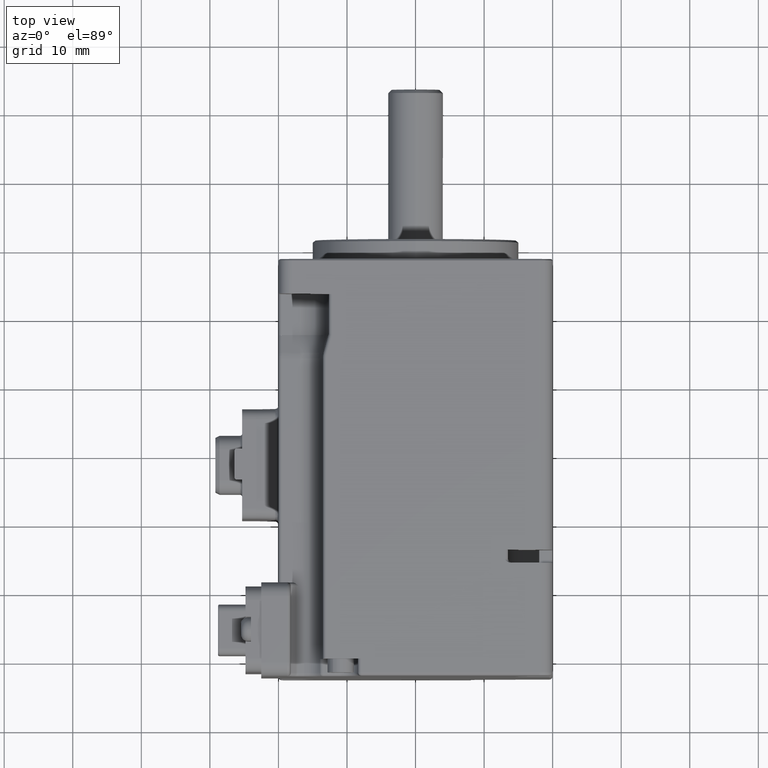
[diagram: clean part render]
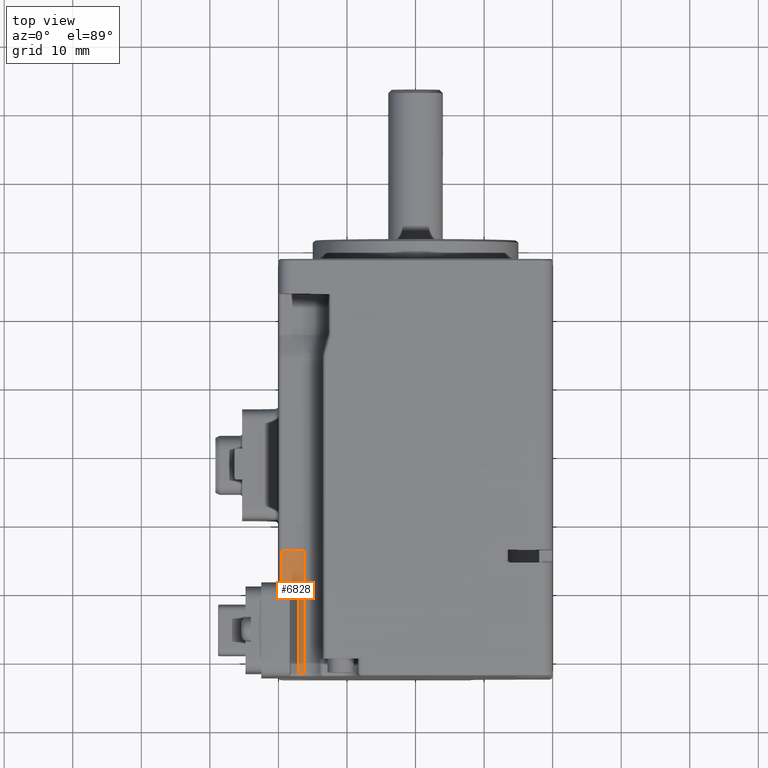
[diagram: same view with one face highlighted and labeled with its STEP entity id]
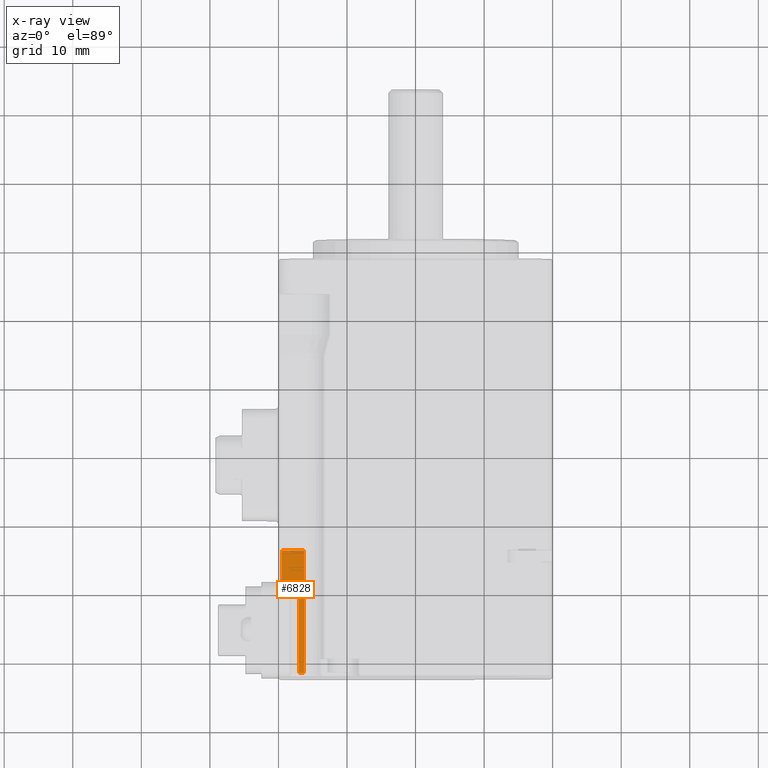
[diagram: x-ray of the same camera — body ghosted, the highlighted face saturated]
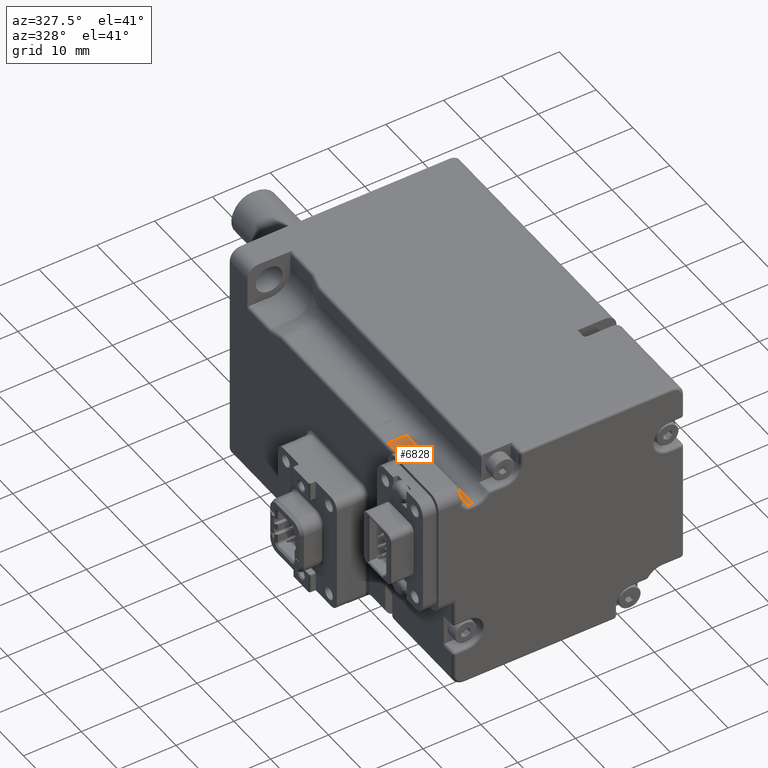
[diagram: same view with one face highlighted and labeled with its STEP entity id]
A machine part, top view. The second image highlights one B-rep face of the part: STEP entity #6828.
The next image is the same camera in x-ray: the body ghosted, the highlighted face saturated — about 0% of this face is hidden behind the body in this view.
A second angle (auxiliary view) of the same face is appended — the face is thin or edge-on in the first view.
In plain terms, the highlighted planar face has unit normal (0, 0, -1).
Its self-contained STEP definition (entity closure, byte-faithful):
#288 = ORIENTED_EDGE ( 'NONE', *, *, #7957, .T. ) ;
#632 = DIRECTION ( 'NONE',  ( 7.347641559956486562E-15, 1.165734175856419889E-15, -1.000000000000000000 ) ) ;
#2287 = DIRECTION ( 'NONE',  ( 2.428612866367538807E-16, -1.000000000000000000, -1.165734175856418706E-15 ) ) ;
#3208 = CARTESIAN_POINT ( 'NONE',  ( -16.26345596729067466, -2.500000000000057732, 13.50345596729042086 ) ) ;
#3510 = VECTOR ( 'NONE', #2287, 1000.000000000000000 ) ;
#3765 = CARTESIAN_POINT ( 'NONE',  ( -17.66444195738190359, -8.732646012682170777, 13.50345596729040487 ) ) ;
#4416 =( BOUNDED_CURVE ( )  B_SPLINE_CURVE ( 3, ( #25714, #22547, #3765, #27989 ),
 .UNSPECIFIED., .F., .F. ) 
 B_SPLINE_CURVE_WITH_KNOTS ( ( 4, 4 ),
 ( 4.712388980384689674, 5.338239051312135608 ),
 .UNSPECIFIED. ) 
 CURVE ( )  GEOMETRIC_REPRESENTATION_ITEM ( )  RATIONAL_B_SPLINE_CURVE ( ( 1.000000000000000000, 0.9676247932184491862, 0.9676247932184491862, 1.000000000000000000 ) ) 
 REPRESENTATION_ITEM ( '' )  );
#4788 = VECTOR ( 'NONE', #11851, 1000.000000000000000 ) ;
#5388 = LINE ( 'NONE', #29710, #10918 ) ;
#5556 = DIRECTION ( 'NONE',  ( -1.000000000000000000, -2.428612866367452525E-16, -7.347641559956486562E-15 ) ) ;
#5792 = CARTESIAN_POINT ( 'NONE',  ( -17.19459671956843749, -9.048298016242068087, 13.50345596729040487 ) ) ;
#6119 = FACE_OUTER_BOUND ( 'NONE', #25316, .T. ) ;
#6449 = CARTESIAN_POINT ( 'NONE',  ( -20.00000000000008527, -21.90000000000005187, 13.50345596729037112 ) ) ;
#6828 = ADVANCED_FACE ( 'NONE', ( #6119 ), #32837, .F. ) ;
#7492 = DIRECTION ( 'NONE',  ( 1.000000000000000000, 2.428612866367452525E-16, 7.347641559956486562E-15 ) ) ;
#7625 = ORIENTED_EDGE ( 'NONE', *, *, #14337, .T. ) ;
#7954 = EDGE_CURVE ( 'NONE', #13791, #21789, #11250, .T. ) ;
#7957 = EDGE_CURVE ( 'NONE', #19796, #25206, #21976, .T. ) ;
#8394 = CARTESIAN_POINT ( 'NONE',  ( -17.34931140261643279, -8.893703278380058919, 13.50345596729040665 ) ) ;
#8609 = CARTESIAN_POINT ( 'NONE',  ( -17.04289321881353203, -21.90000000000005187, 13.50345596729039244 ) ) ;
#9474 = VERTEX_POINT ( 'NONE', #8609 ) ;
#9686 = ORIENTED_EDGE ( 'NONE', *, *, #14166, .T. ) ;
#9722 = CARTESIAN_POINT ( 'NONE',  ( -16.26345596729067111, -21.90000000000004476, 13.50345596729039777 ) ) ;
#10843 = CARTESIAN_POINT ( 'NONE',  ( -16.26345596729067466, -4.000000000000055955, 13.50345596729041908 ) ) ;
#10918 = VECTOR ( 'NONE', #29874, 1000.000000000000000 ) ;
#11250 = LINE ( 'NONE', #3208, #29662 ) ;
#11316 = ORIENTED_EDGE ( 'NONE', *, *, #30649, .T. ) ;
#11851 = DIRECTION ( 'NONE',  ( 1.000000000000000000, 2.428612866367452525E-16, 7.347641559956486562E-15 ) ) ;
#11956 = VECTOR ( 'NONE', #7492, 1000.000000000000000 ) ;
#12168 = LINE ( 'NONE', #6449, #4788 ) ;
#12416 = CARTESIAN_POINT ( 'NONE',  ( -19.50000000000008527, -8.700000000000054357, 13.50345596729038888 ) ) ;
#12688 = LINE ( 'NONE', #23480, #11956 ) ;
#12978 = VECTOR ( 'NONE', #32555, 1000.000000000000000 ) ;
#13456 = EDGE_CURVE ( 'NONE', #15960, #13791, #12688, .T. ) ;
#13791 = VERTEX_POINT ( 'NONE', #10843 ) ;
#14166 = EDGE_CURVE ( 'NONE', #9474, #21789, #12168, .T. ) ;
#14192 = CARTESIAN_POINT ( 'NONE',  ( -17.54289321881353203, -8.794767273812873043, 13.50345596729040487 ) ) ;
#14337 = EDGE_CURVE ( 'NONE', #28010, #9474, #5388, .T. ) ;
#15960 = VERTEX_POINT ( 'NONE', #29692 ) ;
#16324 = CARTESIAN_POINT ( 'NONE',  ( -17.04289321881353558, -9.200000000000054357, 13.50345596729040665 ) ) ;
#16896 = CARTESIAN_POINT ( 'NONE',  ( -17.04289321881353558, -9.200000000000054357, 13.50345596729040665 ) ) ;
#18340 = VERTEX_POINT ( 'NONE', #14192 ) ;
#19796 = VERTEX_POINT ( 'NONE', #12416 ) ;
#20345 = ORIENTED_EDGE ( 'NONE', *, *, #7954, .F. ) ;
#21165 = AXIS2_PLACEMENT_3D ( 'NONE', #26779, #632, #5556 ) ;
#21197 = ORIENTED_EDGE ( 'NONE', *, *, #24680, .T. ) ;
#21789 = VERTEX_POINT ( 'NONE', #9722 ) ;
#21976 = LINE ( 'NONE', #29310, #12978 ) ;
#22074 = CARTESIAN_POINT ( 'NONE',  ( -17.54289321881353203, -8.794767273812873043, 13.50345596729040487 ) ) ;
#22144 = ORIENTED_EDGE ( 'NONE', *, *, #31975, .T. ) ;
#22547 = CARTESIAN_POINT ( 'NONE',  ( -17.80713279005315641, -8.700000000000052580, 13.50345596729040309 ) ) ;
#23176 = LINE ( 'NONE', #25968, #3510 ) ;
#23480 = CARTESIAN_POINT ( 'NONE',  ( -20.00000000000008882, -4.000000000000055955, 13.50345596729039066 ) ) ;
#24217 = ORIENTED_EDGE ( 'NONE', *, *, #13456, .F. ) ;
#24475 = B_SPLINE_CURVE_WITH_KNOTS ( 'NONE', 3,
 ( #22074, #8394, #5792, #16324 ),
 .UNSPECIFIED., .F., .F.,
 ( 4, 4 ),
 ( 8.050201130704870423E-18, 0.0006436202266528085218 ),
 .UNSPECIFIED. ) ;
#24680 = EDGE_CURVE ( 'NONE', #18340, #28010, #24475, .T. ) ;
#25206 = VERTEX_POINT ( 'NONE', #29318 ) ;
#25316 = EDGE_LOOP ( 'NONE', ( #24217, #22144, #288, #11316, #21197, #7625, #9686, #20345 ) ) ;
#25714 = CARTESIAN_POINT ( 'NONE',  ( -17.95710678118663139, -8.700000000000054357, 13.50345596729039954 ) ) ;
#25968 = CARTESIAN_POINT ( 'NONE',  ( -19.50000000000008527, -8.700000000000054357, 13.50345596729038888 ) ) ;
#26745 = DIRECTION ( 'NONE',  ( 2.428612866367538314E-16, -1.000000000000000000, -1.165734175856418312E-15 ) ) ;
#26779 = CARTESIAN_POINT ( 'NONE',  ( -20.00000000000008882, -2.500000000000057732, 13.50345596729039244 ) ) ;
#27989 = CARTESIAN_POINT ( 'NONE',  ( -17.54289321881353203, -8.794767273812873043, 13.50345596729040487 ) ) ;
#28010 = VERTEX_POINT ( 'NONE', #16896 ) ;
#29310 = CARTESIAN_POINT ( 'NONE',  ( -17.25000000000008171, -8.700000000000052580, 13.50345596729040487 ) ) ;
#29318 = CARTESIAN_POINT ( 'NONE',  ( -17.95710678118663139, -8.700000000000054357, 13.50345596729039954 ) ) ;
#29662 = VECTOR ( 'NONE', #26745, 1000.000000000000000 ) ;
#29692 = CARTESIAN_POINT ( 'NONE',  ( -19.50000000000008527, -4.000000000000055955, 13.50345596729039421 ) ) ;
#29710 = CARTESIAN_POINT ( 'NONE',  ( -17.04289321881353558, -2.500000000000057732, 13.50345596729041553 ) ) ;
#29874 = DIRECTION ( 'NONE',  ( 2.428612866367538807E-16, -1.000000000000000000, -1.165734175856418706E-15 ) ) ;
#30649 = EDGE_CURVE ( 'NONE', #25206, #18340, #4416, .T. ) ;
#31975 = EDGE_CURVE ( 'NONE', #15960, #19796, #23176, .T. ) ;
#32555 = DIRECTION ( 'NONE',  ( 1.000000000000000000, 2.428612866367457949E-16, 6.883382752675969762E-15 ) ) ;
#32837 = PLANE ( 'NONE',  #21165 ) ;